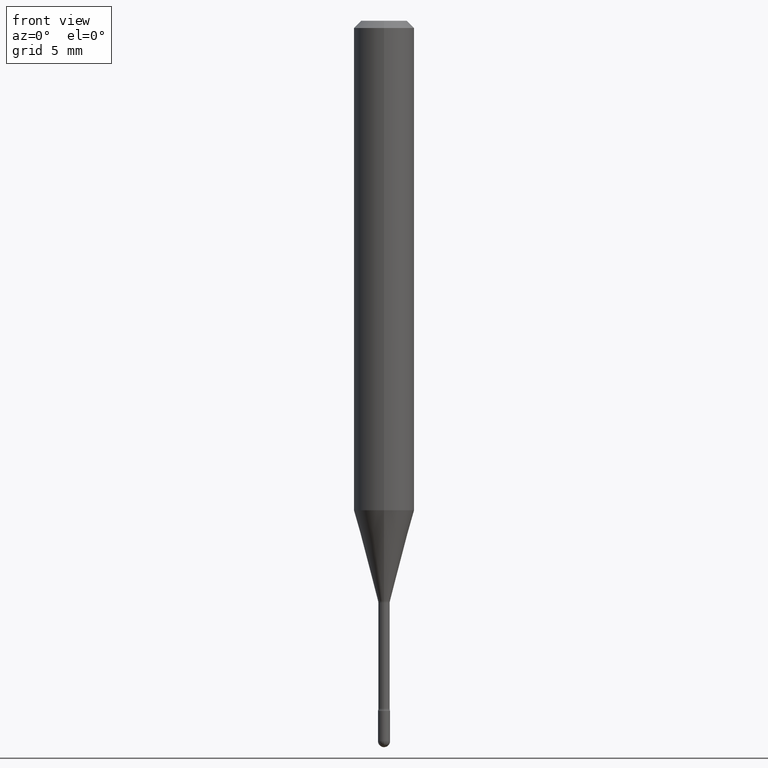
[diagram: clean part render]
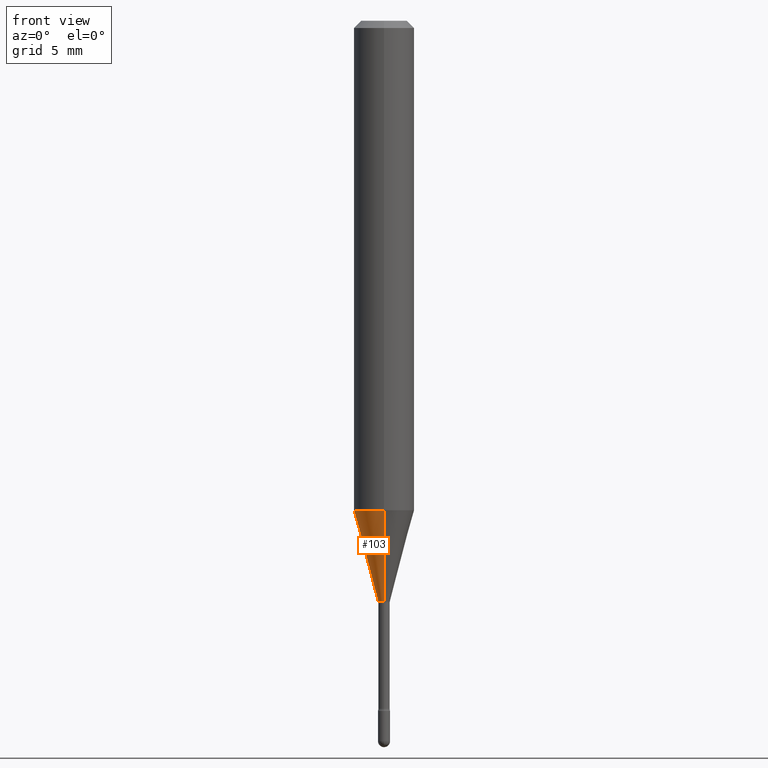
[diagram: same view with one face highlighted and labeled with its STEP entity id]
A machine part, front view. The second image highlights one B-rep face of the part: STEP entity #103.
In plain terms, the highlighted conical surface has half-angle 15 deg.
Its self-contained STEP definition (entity closure, byte-faithful):
#21 = VERTEX_POINT ( 'NONE', #137 ) ;
#24 = ORIENTED_EDGE ( 'NONE', *, *, #527, .T. ) ;
#33 = AXIS2_PLACEMENT_3D ( 'NONE', #83, #393, #397 ) ;
#36 = DIRECTION ( 'NONE',  ( -2.445512229756394153E-29, 3.491419153817588613E-15, 1.000000000000000000 ) ) ;
#51 = CARTESIAN_POINT ( 'NONE',  ( 4.440892098500871695E-16, 0.06249999999999647504, -1.010598421515880085 ) ) ;
#54 = CIRCLE ( 'NONE', #300, 0.06250000000000000000 ) ;
#60 = VERTEX_POINT ( 'NONE', #413 ) ;
#78 = LINE ( 'NONE', #565, #535 ) ;
#83 = CARTESIAN_POINT ( 'NONE',  ( 2.929949865500210976E-29, -4.183043108785318742E-15, -1.198092501787273223 ) ) ;
#103 = ADVANCED_FACE ( 'NONE', ( #222 ), #146, .T. ) ;
#122 = DIRECTION ( 'NONE',  ( -1.807323732225327773E-15, -0.2588190451025178529, 0.9659258262890690894 ) ) ;
#137 = CARTESIAN_POINT ( 'NONE',  ( -4.364351673553669682E-16, -0.06250000000000353884, -1.010598421515879641 ) ) ;
#145 = DIRECTION ( 'NONE',  ( -6.982962677686265922E-15, -1.000000000000000000, 4.370956789862821150E-15 ) ) ;
#146 = CONICAL_SURFACE ( 'NONE', #33, 0.01226111260566398360, 0.2617993877991499074 ) ;
#163 = VECTOR ( 'NONE', #322, 39.37007874015748854 ) ;
#164 = VERTEX_POINT ( 'NONE', #51 ) ;
#192 = CARTESIAN_POINT ( 'NONE',  ( -8.561889171223090403E-17, -0.01226111260566816602, -1.198092501787273223 ) ) ;
#222 = FACE_OUTER_BOUND ( 'NONE', #516, .T. ) ;
#231 = EDGE_CURVE ( 'NONE', #164, #21, #54, .T. ) ;
#253 = VERTEX_POINT ( 'NONE', #192 ) ;
#299 = CARTESIAN_POINT ( 'NONE',  ( 2.929949865500210976E-29, -4.183043108785318742E-15, -1.198092501787273223 ) ) ;
#300 = AXIS2_PLACEMENT_3D ( 'NONE', #363, #540, #145 ) ;
#303 = ORIENTED_EDGE ( 'NONE', *, *, #306, .F. ) ;
#306 = EDGE_CURVE ( 'NONE', #60, #164, #452, .T. ) ;
#322 = DIRECTION ( 'NONE',  ( 1.839019923739597554E-15, 0.2588190451025245697, 0.9659258262890670910 ) ) ;
#331 = ORIENTED_EDGE ( 'NONE', *, *, #563, .T. ) ;
#363 = CARTESIAN_POINT ( 'NONE',  ( 2.471430799189591968E-29, -3.528422685698364125E-15, -1.010598421515879863 ) ) ;
#365 = CARTESIAN_POINT ( 'NONE',  ( 8.712044494294066016E-17, 0.01226111260565980118, -1.198092501787273223 ) ) ;
#381 = AXIS2_PLACEMENT_3D ( 'NONE', #299, #36, #555 ) ;
#393 = DIRECTION ( 'NONE',  ( -2.445512229756394153E-29, 3.491419153817588613E-15, 1.000000000000000000 ) ) ;
#397 = DIRECTION ( 'NONE',  ( -6.982962677686265922E-15, -1.000000000000000000, 0.000000000000000000 ) ) ;
#401 = CIRCLE ( 'NONE', #381, 0.01226111260566398360 ) ;
#413 = CARTESIAN_POINT ( 'NONE',  ( 2.656048273965141059E-16, 0.01226111260565980292, -1.198092501787273223 ) ) ;
#452 = LINE ( 'NONE', #365, #163 ) ;
#516 = EDGE_LOOP ( 'NONE', ( #303, #24, #331, #561 ) ) ;
#527 = EDGE_CURVE ( 'NONE', #60, #253, #401, .T. ) ;
#535 = VECTOR ( 'NONE', #122, 39.37007874015748143 ) ;
#540 = DIRECTION ( 'NONE',  ( -2.445512229756394153E-29, 3.491419153817588613E-15, 1.000000000000000000 ) ) ;
#555 = DIRECTION ( 'NONE',  ( -6.982962677686265922E-15, -1.000000000000000000, 0.000000000000000000 ) ) ;
#561 = ORIENTED_EDGE ( 'NONE', *, *, #231, .F. ) ;
#563 = EDGE_CURVE ( 'NONE', #253, #21, #78, .T. ) ;
#565 = CARTESIAN_POINT ( 'NONE',  ( -8.561889171223090403E-17, -0.01226111260566816602, -1.198092501787273223 ) ) ;